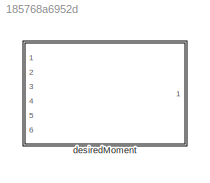
MODEL slx_185768a6952d
KIND library
CONFIG AbsTol = auto
CONFIG EnableMultiTasking = off
CONFIG FixedStep = auto
CONFIG MaxStep = auto
CONFIG MinStep = auto
CONFIG RelTol = 1e-3
CONFIG SampleTimeConstraint = Unconstrained
CONFIG Solver = VariableStepAuto
CONFIG SolverName = VariableStepAuto
CONFIG StartTime = 0.0
CONFIG StopTime = 10.0
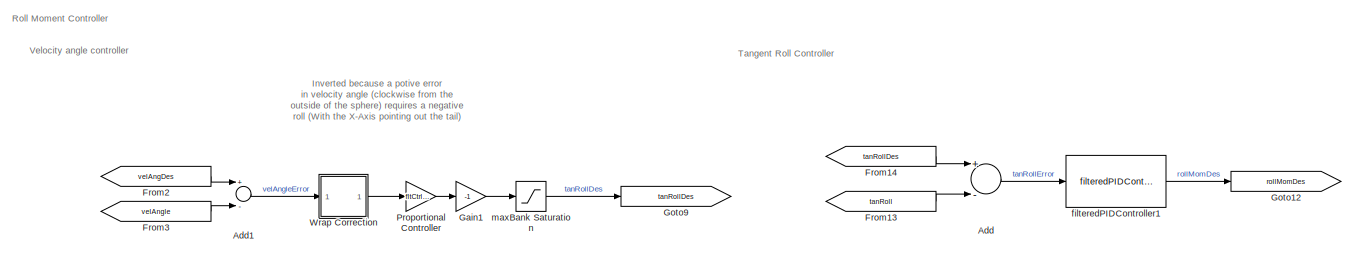
[diagram: desiredMoment - part 1/3, top center region]
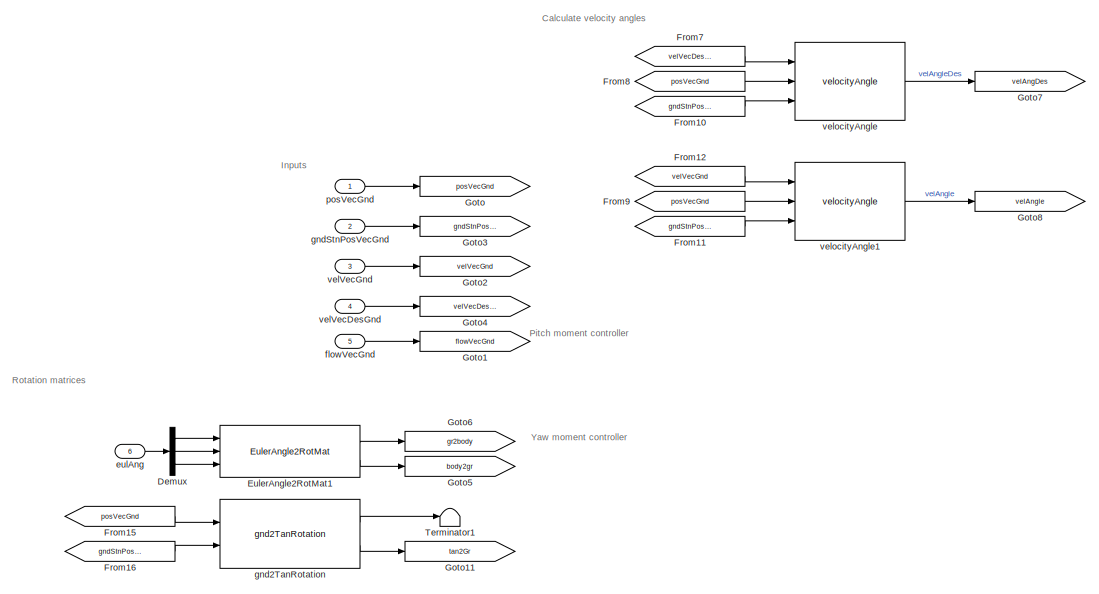
[diagram: desiredMoment - part 2/3, middle left region]
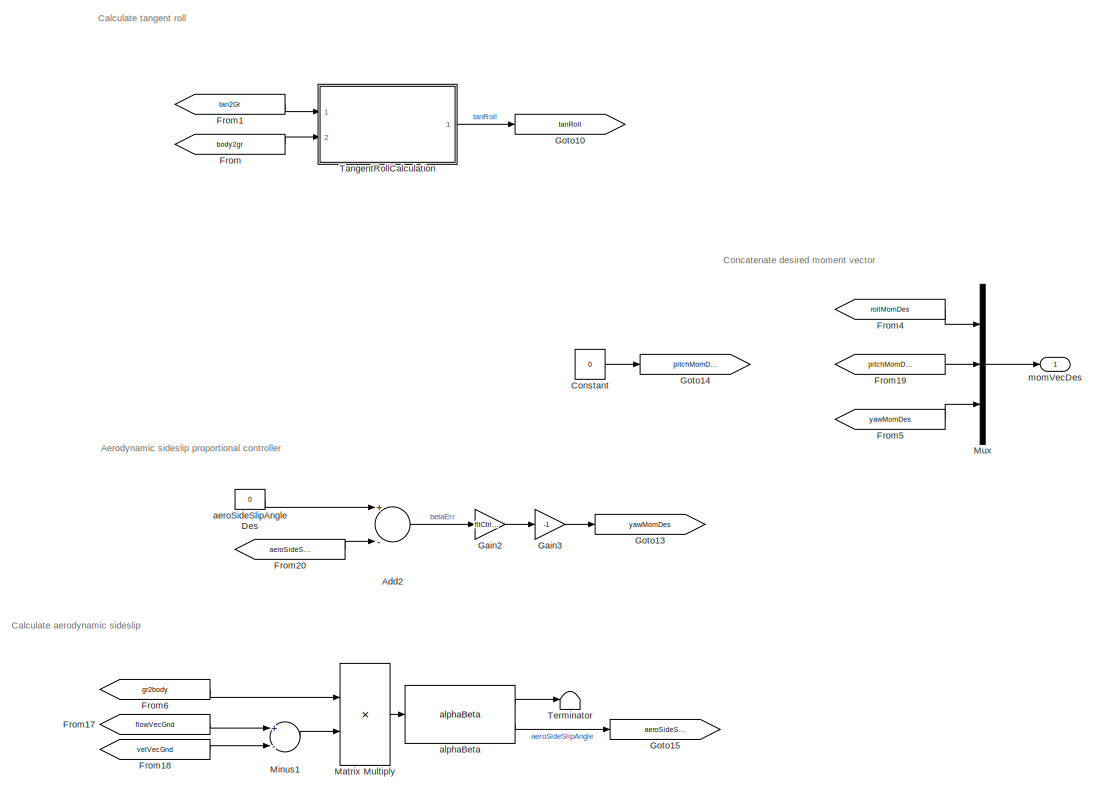
[diagram: desiredMoment - part 3/3, middle right region]
BLOCK [SubSystem] desiredMoment
  Ports = [6, 1]
  RequestExecContextInheritance = off
BLOCK [Sum] desiredMoment/Add
  InputSameDT = off
  Inputs = +-
  OutDataTypeStr = Inherit: Inherit via internal rule
  Ports = [2, 1]
  SaturateOnIntegerOverflow = off
BLOCK [Sum] desiredMoment/Add1
  InputSameDT = off
  Inputs = +-
  OutDataTypeStr = Inherit: Inherit via internal rule
  Ports = [2, 1]
  SaturateOnIntegerOverflow = off
BLOCK [Sum] desiredMoment/Add2
  InputSameDT = off
  Inputs = +-
  OutDataTypeStr = Inherit: Inherit via internal rule
  Ports = [2, 1]
  SaturateOnIntegerOverflow = off
BLOCK [Constant] desiredMoment/Constant
  Value = 0
BLOCK [Demux] desiredMoment/Demux
  DisplayOption = bar
  Outputs = 3
  Ports = [1, 3]
BLOCK [Reference] desiredMoment/EulerAngle2RotMat1  REF=eulAng2RotMat_ul/EulerAngle2RotMat
  Ports = [3, 2]
  SourceBlock = eulAng2RotMat_ul/EulerAngle2RotMat
  SourceType = SubSystem
BLOCK [From] desiredMoment/From
  GotoTag = body2gr
BLOCK [From] desiredMoment/From1
  GotoTag = tan2Gr
BLOCK [From] desiredMoment/From10
  GotoTag = gndStnPosVecGnd
BLOCK [From] desiredMoment/From11
  GotoTag = gndStnPosVecGnd
BLOCK [From] desiredMoment/From12
  GotoTag = velVecGnd
BLOCK [From] desiredMoment/From13
  GotoTag = tanRoll
BLOCK [From] desiredMoment/From14
  GotoTag = tanRollDes
BLOCK [From] desiredMoment/From15
  GotoTag = posVecGnd
BLOCK [From] desiredMoment/From16
  GotoTag = gndStnPosVecGnd
BLOCK [From] desiredMoment/From17
  GotoTag = flowVecGnd
BLOCK [From] desiredMoment/From18
  GotoTag = velVecGnd
BLOCK [From] desiredMoment/From19
  GotoTag = pitchMomDes
BLOCK [From] desiredMoment/From2
  GotoTag = velAngDes
BLOCK [From] desiredMoment/From20
  GotoTag = aeroSideSlipAngle
BLOCK [From] desiredMoment/From3
  GotoTag = velAngle
BLOCK [From] desiredMoment/From4
  GotoTag = rollMomDes
BLOCK [From] desiredMoment/From5
  GotoTag = yawMomDes
BLOCK [From] desiredMoment/From6
  GotoTag = gr2body
BLOCK [From] desiredMoment/From7
  GotoTag = velVecDesGnd
BLOCK [From] desiredMoment/From8
  GotoTag = posVecGnd
BLOCK [From] desiredMoment/From9
  GotoTag = posVecGnd
BLOCK [Gain] desiredMoment/Gain1
  Gain = -1
  OutDataTypeStr = Inherit: Inherit via internal rule
  ParamDataTypeStr = Inherit: Inherit via internal rule
  SaturateOnIntegerOverflow = off
BLOCK [Gain] desiredMoment/Gain2
  Gain = fltCtrl.yawMoment.kp.Value
  OutDataTypeStr = Inherit: Inherit via internal rule
  ParamDataTypeStr = Inherit: Inherit via internal rule
  SaturateOnIntegerOverflow = off
BLOCK [Gain] desiredMoment/Gain3
  Gain = -1
  OutDataTypeStr = Inherit: Inherit via internal rule
  ParamDataTypeStr = Inherit: Inherit via internal rule
  SaturateOnIntegerOverflow = off
BLOCK [Goto] desiredMoment/Goto
  GotoTag = posVecGnd
BLOCK [Goto] desiredMoment/Goto1
  GotoTag = flowVecGnd
BLOCK [Goto] desiredMoment/Goto10
  GotoTag = tanRoll
BLOCK [Goto] desiredMoment/Goto11
  GotoTag = tan2Gr
BLOCK [Goto] desiredMoment/Goto12
  GotoTag = rollMomDes
BLOCK [Goto] desiredMoment/Goto13
  GotoTag = yawMomDes
BLOCK [Goto] desiredMoment/Goto14
  GotoTag = pitchMomDes
BLOCK [Goto] desiredMoment/Goto15
  GotoTag = aeroSideSlipAngle
BLOCK [Goto] desiredMoment/Goto2
  GotoTag = velVecGnd
BLOCK [Goto] desiredMoment/Goto3
  GotoTag = gndStnPosVecGnd
BLOCK [Goto] desiredMoment/Goto4
  GotoTag = velVecDesGnd
BLOCK [Goto] desiredMoment/Goto5
  GotoTag = body2gr
BLOCK [Goto] desiredMoment/Goto6
  GotoTag = gr2body
BLOCK [Goto] desiredMoment/Goto7
  GotoTag = velAngDes
BLOCK [Goto] desiredMoment/Goto8
  GotoTag = velAngle
BLOCK [Goto] desiredMoment/Goto9
  GotoTag = tanRollDes
BLOCK [Product] desiredMoment/Matrix Multiply
  InputSameDT = off
  Multiplication = Matrix(*)
  OutDataTypeStr = Inherit: Inherit via internal rule
  Ports = [2, 1]
  RndMeth = Floor
  SaturateOnIntegerOverflow = off
BLOCK [Sum] desiredMoment/Minus1
  InputSameDT = off
  Inputs = +-
  OutDataTypeStr = Inherit: Inherit via internal rule
  Ports = [2, 1]
  SaturateOnIntegerOverflow = off
BLOCK [Mux] desiredMoment/Mux
  DisplayOption = bar
  Inputs = 3
  Ports = [3, 1]
BLOCK [Gain] desiredMoment/Proportional Controller
  Gain = fltCtrl.tanRoll.kp.Value
  OutDataTypeStr = Inherit: Inherit via internal rule
  ParamDataTypeStr = Inherit: Inherit via internal rule
  SaturateOnIntegerOverflow = off
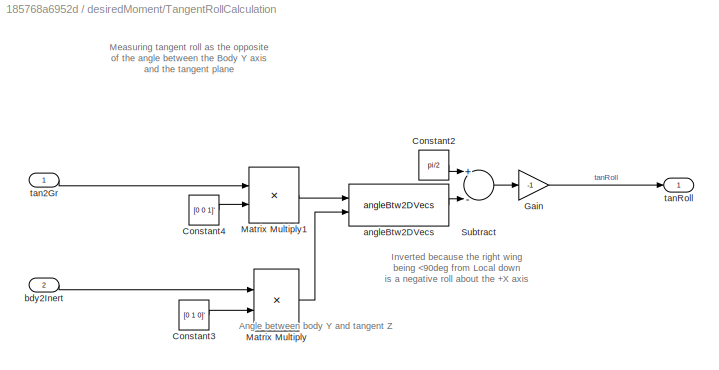
BLOCK [SubSystem] desiredMoment/TangentRollCalculation
  Ports = [2, 1]
  RequestExecContextInheritance = off
BLOCK [Constant] desiredMoment/TangentRollCalculation/Constant2
  Value = pi/2
BLOCK [Constant] desiredMoment/TangentRollCalculation/Constant3
  Value = [0 1 0]'
BLOCK [Constant] desiredMoment/TangentRollCalculation/Constant4
  Value = [0 0 1]'
BLOCK [Gain] desiredMoment/TangentRollCalculation/Gain
  Gain = -1
  OutDataTypeStr = Inherit: Inherit via internal rule
  ParamDataTypeStr = Inherit: Inherit via internal rule
  SaturateOnIntegerOverflow = off
BLOCK [Product] desiredMoment/TangentRollCalculation/Matrix Multiply
  InputSameDT = off
  Multiplication = Matrix(*)
  OutDataTypeStr = Inherit: Inherit via internal rule
  Ports = [2, 1]
  RndMeth = Floor
  SaturateOnIntegerOverflow = off
BLOCK [Product] desiredMoment/TangentRollCalculation/Matrix Multiply1
  InputSameDT = off
  Multiplication = Matrix(*)
  OutDataTypeStr = Inherit: Inherit via internal rule
  Ports = [2, 1]
  RndMeth = Floor
  SaturateOnIntegerOverflow = off
BLOCK [Sum] desiredMoment/TangentRollCalculation/Subtract
  InputSameDT = off
  Inputs = +-
  OutDataTypeStr = Inherit: Inherit via internal rule
  Ports = [2, 1]
  SaturateOnIntegerOverflow = off
BLOCK [Reference] desiredMoment/TangentRollCalculation/angleBtw2DVecs  REF=angleBtw2Vecs_ul/angleBtw2DVecs
  Ports = [2, 1]
  SourceBlock = angleBtw2Vecs_ul/angleBtw2DVecs
  SourceType = SubSystem
BLOCK [Inport] desiredMoment/TangentRollCalculation/bdy2Inert
  IconDisplay = Port number
  Port = 2
BLOCK [Inport] desiredMoment/TangentRollCalculation/tan2Gr
  IconDisplay = Port number
BLOCK [Outport] desiredMoment/TangentRollCalculation/tanRoll
  IconDisplay = Port number
BLOCK [Terminator] desiredMoment/Terminator
BLOCK [Terminator] desiredMoment/Terminator1
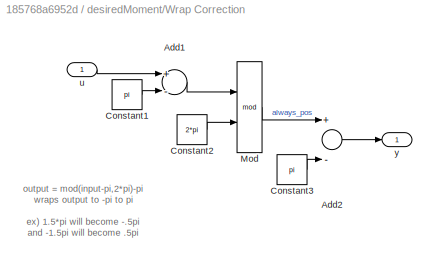
BLOCK [SubSystem] desiredMoment/Wrap Correction
  Ports = [1, 1]
  RequestExecContextInheritance = off
BLOCK [Sum] desiredMoment/Wrap Correction/Add1
  InputSameDT = off
  Inputs = +-
  OutDataTypeStr = Inherit: Inherit via internal rule
  Ports = [2, 1]
  SaturateOnIntegerOverflow = off
BLOCK [Sum] desiredMoment/Wrap Correction/Add2
  InputSameDT = off
  Inputs = +-
  OutDataTypeStr = Inherit: Inherit via internal rule
  Ports = [2, 1]
  SaturateOnIntegerOverflow = off
BLOCK [Constant] desiredMoment/Wrap Correction/Constant1
  Value = pi
BLOCK [Constant] desiredMoment/Wrap Correction/Constant2
  Value = 2*pi
BLOCK [Constant] desiredMoment/Wrap Correction/Constant3
  Value = pi
BLOCK [Math] desiredMoment/Wrap Correction/Mod
  Operator = mod
  Ports = [2, 1]
BLOCK [Inport] desiredMoment/Wrap Correction/u
  IconDisplay = Port number
BLOCK [Outport] desiredMoment/Wrap Correction/y
  IconDisplay = Port number
BLOCK [Constant] desiredMoment/aeroSideSlipAngleDes
  Value = 0
BLOCK [Reference] desiredMoment/alphaBeta  REF=alphaBeta_ul/alphaBeta
  Ports = [1, 2]
  SourceBlock = alphaBeta_ul/alphaBeta
  SourceType = SubSystem
BLOCK [Inport] desiredMoment/eulAng
  IconDisplay = Port number
  Port = 6
BLOCK [Reference] desiredMoment/filteredPIDController1  REF=filteredPIDController_ul/filteredPIDController
  Ports = [1, 1]
  SourceBlock = filteredPIDController_ul/filteredPIDController
BLOCK [Inport] desiredMoment/flowVecGnd
  IconDisplay = Port number
  Port = 5
BLOCK [Reference] desiredMoment/gnd2TanRotation  REF=gnd2TanRotation_ul/gnd2TanRotation
  Ports = [2, 2]
  SourceBlock = gnd2TanRotation_ul/gnd2TanRotation
  SourceType = SubSystem
BLOCK [Inport] desiredMoment/gndStnPosVecGnd
  IconDisplay = Port number
  Port = 2
BLOCK [Saturate] desiredMoment/maxBank Saturation
  InputPortMap = u0
  LowerLimit = pathCtrl.maxBank.lowerLimit.Value
  Ports = [1, 1]
  UpperLimit = pathCtrl.maxBank.upperLimit.Value
BLOCK [Outport] desiredMoment/momVecDes
  IconDisplay = Port number
BLOCK [Inport] desiredMoment/posVecGnd
  IconDisplay = Port number
BLOCK [Inport] desiredMoment/velVecDesGnd
  IconDisplay = Port number
  Port = 4
BLOCK [Inport] desiredMoment/velVecGnd
  IconDisplay = Port number
  Port = 3
BLOCK [Reference] desiredMoment/velocityAngle  REF=velocityAngle_ul/velocityAngle
  Ports = [3, 1]
  SourceBlock = velocityAngle_ul/velocityAngle
  SourceType = SubSystem
BLOCK [Reference] desiredMoment/velocityAngle1  REF=velocityAngle_ul/velocityAngle
  Ports = [3, 1]
  SourceBlock = velocityAngle_ul/velocityAngle
  SourceType = SubSystem
ANNOTATION desiredMoment: Aerodynamic sideslip proportional controller
ANNOTATION desiredMoment: Calculate aerodynamic sideslip
ANNOTATION desiredMoment: Calculate tangent roll
ANNOTATION desiredMoment: Calculate velocity angles
ANNOTATION desiredMoment: Concatenate desired moment vector
ANNOTATION desiredMoment: Inputs
ANNOTATION desiredMoment: Inverted because a potive error in velocity angle (clockwise from the outside of the sphere) requires a negative roll (With the X-Axis pointing out the tail)
ANNOTATION desiredMoment: Pitch moment controller
ANNOTATION desiredMoment: Roll Moment Controller
ANNOTATION desiredMoment: Rotation matrices
ANNOTATION desiredMoment: Tangent Roll Controller
ANNOTATION desiredMoment: Velocity angle controller
ANNOTATION desiredMoment: Yaw moment controller
ANNOTATION desiredMoment/TangentRollCalculation: Measuring tangent roll as the opposite of the angle between the Body Y axis and the tangent plane
ANNOTATION desiredMoment/TangentRollCalculation: Angle between body Y and tangent Z
ANNOTATION desiredMoment/TangentRollCalculation: Inverted because the right wing being <90deg from Local down is a negative roll about the +X axis
ANNOTATION desiredMoment/Wrap Correction: output = mod(input-pi,2*pi)-pi wraps output to -pi to pi ex) 1.5*pi will become -.5pi and -1.5pi will become .5pi to visualize, plot the fuction above
LINE desiredMoment/Add1:1 -> desiredMoment/Wrap Correction:1
LINE desiredMoment/Add2:1 -> desiredMoment/Gain2:1
LINE desiredMoment/Add:1 -> desiredMoment/filteredPIDController1:1
LINE desiredMoment/Constant:1 -> desiredMoment/Goto14:1
LINE desiredMoment/Demux:1 -> desiredMoment/EulerAngle2RotMat1:1
LINE desiredMoment/Demux:2 -> desiredMoment/EulerAngle2RotMat1:2
LINE desiredMoment/Demux:3 -> desiredMoment/EulerAngle2RotMat1:3
LINE desiredMoment/EulerAngle2RotMat1:1 -> desiredMoment/Goto6:1
LINE desiredMoment/EulerAngle2RotMat1:2 -> desiredMoment/Goto5:1
LINE desiredMoment/From10:1 -> desiredMoment/velocityAngle:3
LINE desiredMoment/From11:1 -> desiredMoment/velocityAngle1:3
LINE desiredMoment/From12:1 -> desiredMoment/velocityAngle1:1
LINE desiredMoment/From13:1 -> desiredMoment/Add:2
LINE desiredMoment/From14:1 -> desiredMoment/Add:1
LINE desiredMoment/From15:1 -> desiredMoment/gnd2TanRotation:1
LINE desiredMoment/From16:1 -> desiredMoment/gnd2TanRotation:2
LINE desiredMoment/From17:1 -> desiredMoment/Minus1:1
LINE desiredMoment/From18:1 -> desiredMoment/Minus1:2
LINE desiredMoment/From19:1 -> desiredMoment/Mux:2
LINE desiredMoment/From1:1 -> desiredMoment/TangentRollCalculation:1
LINE desiredMoment/From20:1 -> desiredMoment/Add2:2
LINE desiredMoment/From2:1 -> desiredMoment/Add1:1
LINE desiredMoment/From3:1 -> desiredMoment/Add1:2
LINE desiredMoment/From4:1 -> desiredMoment/Mux:1
LINE desiredMoment/From5:1 -> desiredMoment/Mux:3
LINE desiredMoment/From6:1 -> desiredMoment/Matrix Multiply:1
LINE desiredMoment/From7:1 -> desiredMoment/velocityAngle:1
LINE desiredMoment/From8:1 -> desiredMoment/velocityAngle:2
LINE desiredMoment/From9:1 -> desiredMoment/velocityAngle1:2
LINE desiredMoment/From:1 -> desiredMoment/TangentRollCalculation:2
LINE desiredMoment/Gain1:1 -> desiredMoment/maxBank Saturation:1
LINE desiredMoment/Gain2:1 -> desiredMoment/Gain3:1
LINE desiredMoment/Gain3:1 -> desiredMoment/Goto13:1
LINE desiredMoment/Matrix Multiply:1 -> desiredMoment/alphaBeta:1
LINE desiredMoment/Minus1:1 -> desiredMoment/Matrix Multiply:2
LINE desiredMoment/Mux:1 -> desiredMoment/momVecDes:1
LINE desiredMoment/Proportional Controller:1 -> desiredMoment/Gain1:1
LINE desiredMoment/TangentRollCalculation/Constant2:1 -> desiredMoment/TangentRollCalculation/Subtract:1
LINE desiredMoment/TangentRollCalculation/Constant3:1 -> desiredMoment/TangentRollCalculation/Matrix Multiply:2
LINE desiredMoment/TangentRollCalculation/Constant4:1 -> desiredMoment/TangentRollCalculation/Matrix Multiply1:2
LINE desiredMoment/TangentRollCalculation/Gain:1 -> desiredMoment/TangentRollCalculation/tanRoll:1
LINE desiredMoment/TangentRollCalculation/Matrix Multiply1:1 -> desiredMoment/TangentRollCalculation/angleBtw2DVecs:1
LINE desiredMoment/TangentRollCalculation/Matrix Multiply:1 -> desiredMoment/TangentRollCalculation/angleBtw2DVecs:2
LINE desiredMoment/TangentRollCalculation/Subtract:1 -> desiredMoment/TangentRollCalculation/Gain:1
LINE desiredMoment/TangentRollCalculation/angleBtw2DVecs:1 -> desiredMoment/TangentRollCalculation/Subtract:2
LINE desiredMoment/TangentRollCalculation/bdy2Inert:1 -> desiredMoment/TangentRollCalculation/Matrix Multiply:1
LINE desiredMoment/TangentRollCalculation/tan2Gr:1 -> desiredMoment/TangentRollCalculation/Matrix Multiply1:1
LINE desiredMoment/TangentRollCalculation:1 -> desiredMoment/Goto10:1
LINE desiredMoment/Wrap Correction/Add1:1 -> desiredMoment/Wrap Correction/Mod:1
LINE desiredMoment/Wrap Correction/Add2:1 -> desiredMoment/Wrap Correction/y:1
LINE desiredMoment/Wrap Correction/Constant1:1 -> desiredMoment/Wrap Correction/Add1:2
LINE desiredMoment/Wrap Correction/Constant2:1 -> desiredMoment/Wrap Correction/Mod:2
LINE desiredMoment/Wrap Correction/Constant3:1 -> desiredMoment/Wrap Correction/Add2:2
LINE desiredMoment/Wrap Correction/Mod:1 -> desiredMoment/Wrap Correction/Add2:1
LINE desiredMoment/Wrap Correction/u:1 -> desiredMoment/Wrap Correction/Add1:1
LINE desiredMoment/Wrap Correction:1 -> desiredMoment/Proportional Controller:1
LINE desiredMoment/aeroSideSlipAngleDes:1 -> desiredMoment/Add2:1
LINE desiredMoment/alphaBeta:1 -> desiredMoment/Terminator:1
LINE desiredMoment/alphaBeta:2 -> desiredMoment/Goto15:1
LINE desiredMoment/eulAng:1 -> desiredMoment/Demux:1
LINE desiredMoment/filteredPIDController1:1 -> desiredMoment/Goto12:1
LINE desiredMoment/flowVecGnd:1 -> desiredMoment/Goto1:1
LINE desiredMoment/gnd2TanRotation:1 -> desiredMoment/Terminator1:1
LINE desiredMoment/gnd2TanRotation:2 -> desiredMoment/Goto11:1
LINE desiredMoment/gndStnPosVecGnd:1 -> desiredMoment/Goto3:1
LINE desiredMoment/maxBank Saturation:1 -> desiredMoment/Goto9:1
LINE desiredMoment/posVecGnd:1 -> desiredMoment/Goto:1
LINE desiredMoment/velVecDesGnd:1 -> desiredMoment/Goto4:1
LINE desiredMoment/velVecGnd:1 -> desiredMoment/Goto2:1
LINE desiredMoment/velocityAngle1:1 -> desiredMoment/Goto8:1
LINE desiredMoment/velocityAngle:1 -> desiredMoment/Goto7:1
